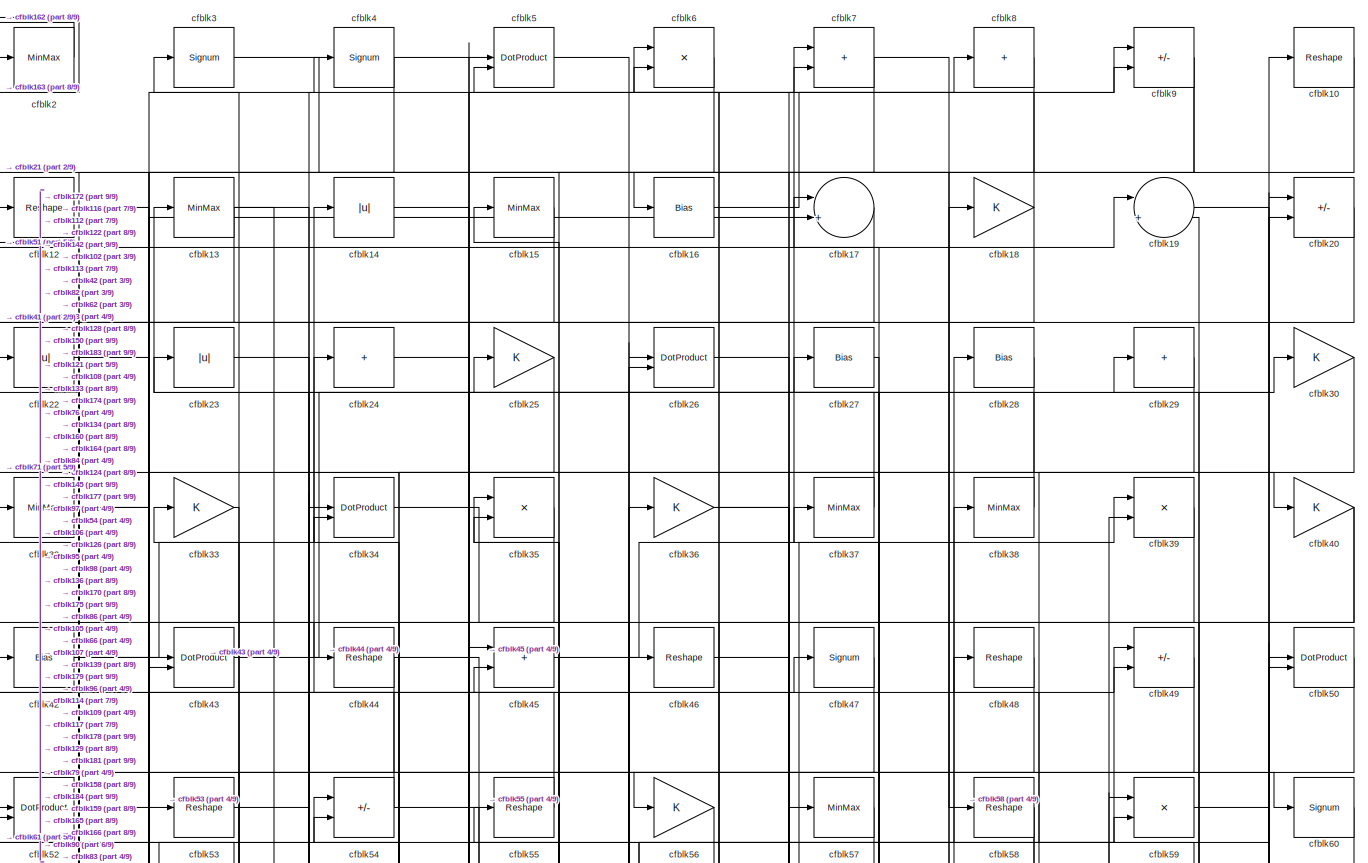
[diagram: root canvas - part 1/9, full width, top band]
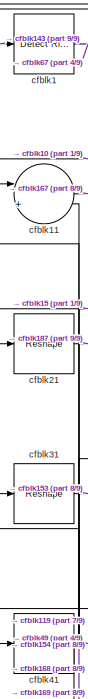
[diagram: root canvas - part 2/9, top left region]
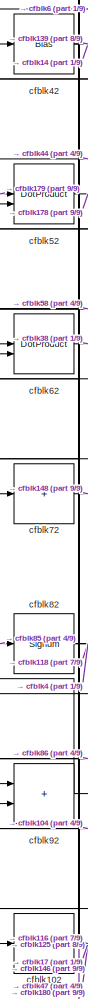
[diagram: root canvas - part 3/9, middle left region]
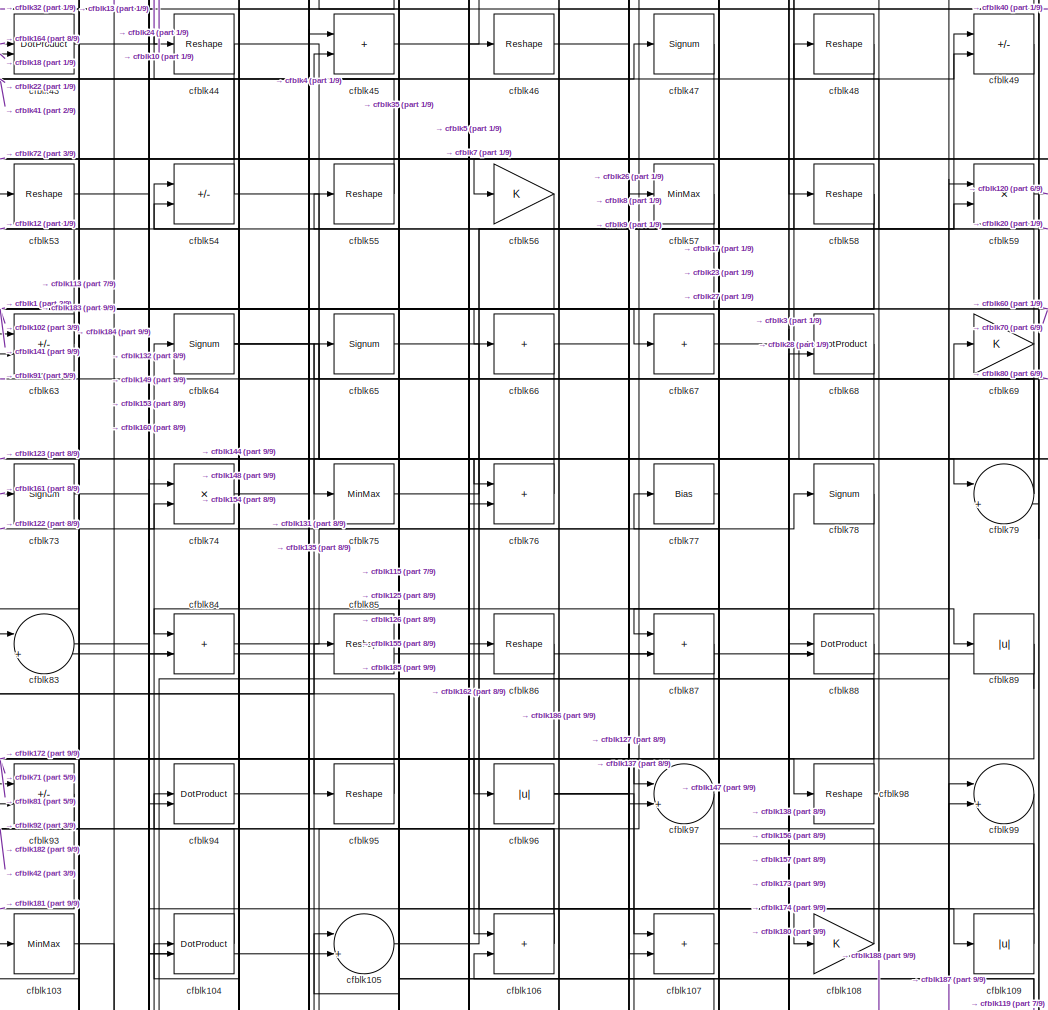
[diagram: root canvas - part 4/9, central region]
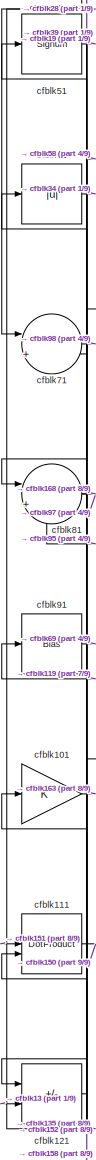
[diagram: root canvas - part 5/9, middle left region]
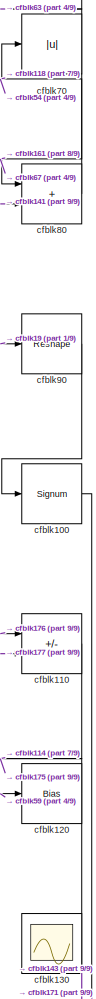
[diagram: root canvas - part 6/9, middle right region]
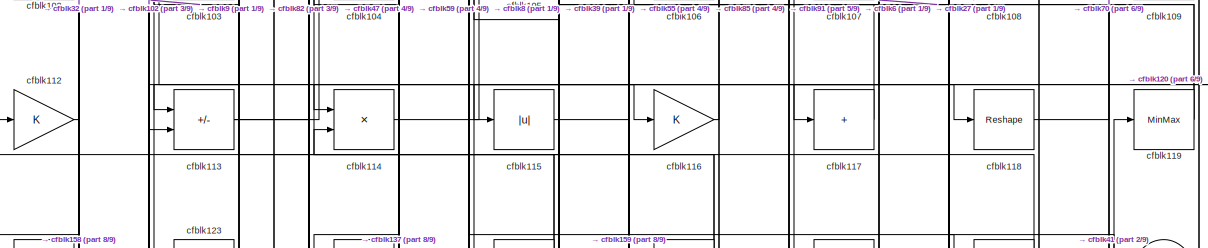
[diagram: root canvas - part 7/9, full width, middle band]
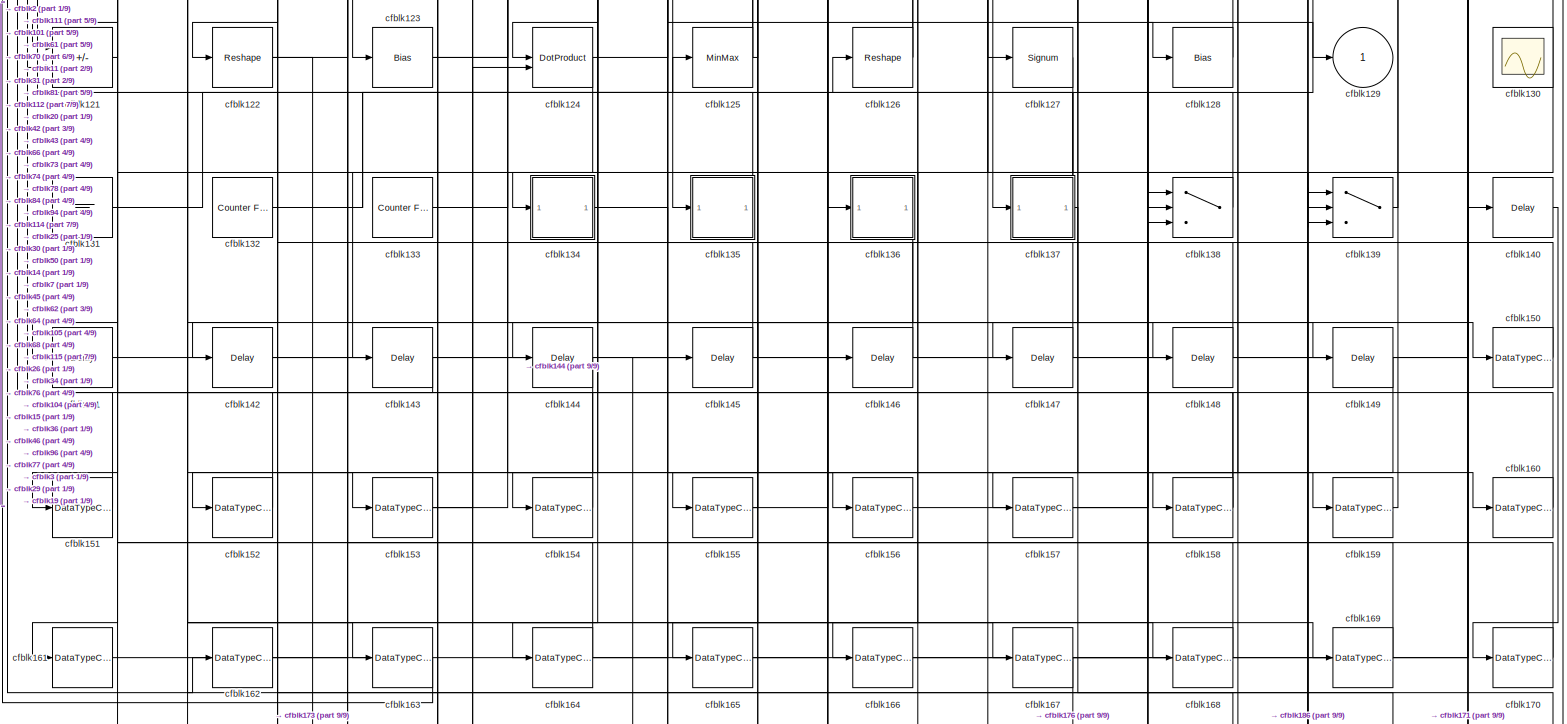
[diagram: root canvas - part 8/9, full width, bottom band]
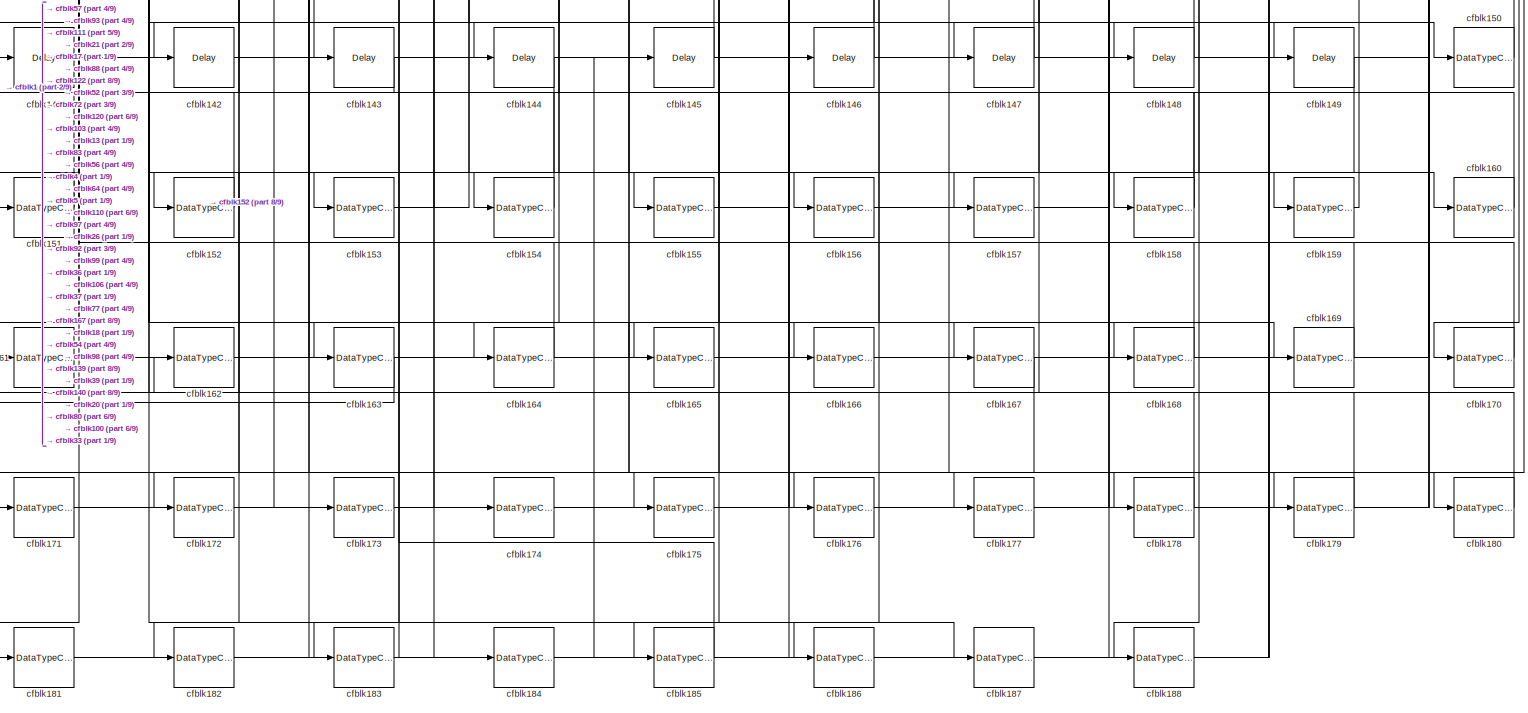
[diagram: root canvas - part 9/9, full width, bottom band]
MODEL slx_d58845a82980
KIND model
CONFIG AbsTol = auto
CONFIG EnableMultiTasking = off
CONFIG FixedStep = auto
CONFIG MaxStep = auto
CONFIG MinStep = auto
CONFIG RelTol = 1e-3
CONFIG SampleTimeConstraint = Unconstrained
CONFIG SolverName = VariableStepAuto
CONFIG StartTime = 0.0
CONFIG StopTime = 10.0
BLOCK [Reference] cfblk1  REF=hdlsllib/Logic and Bit
Operations/Detect Rise
Nonnegative
  SourceBlock = hdlsllib/Logic and Bit\nOperations/Detect Rise\nNonnegative
  SourceType = Detect Rise Nonnegative
BLOCK [Reshape] cfblk10
BLOCK [Signum] cfblk100
BLOCK [Gain] cfblk101
BLOCK [Sum] cfblk102
  IconShape = rectangular
  Inputs = +
BLOCK [MinMax] cfblk103
BLOCK [DotProduct] cfblk104
  OutDataTypeStr = Inherit: Inherit via internal rule
BLOCK [Sum] cfblk105
  Inputs = |++
BLOCK [Sum] cfblk106
  IconShape = rectangular
BLOCK [Sum] cfblk107
  IconShape = rectangular
BLOCK [Gain] cfblk108
BLOCK [Abs] cfblk109
  SaturateOnIntegerOverflow = off
BLOCK [Sum] cfblk11
  Inputs = |++
BLOCK [Sum] cfblk110
  IconShape = rectangular
  Inputs = +-
BLOCK [DotProduct] cfblk111
  OutDataTypeStr = Inherit: Inherit via internal rule
BLOCK [Gain] cfblk112
BLOCK [Sum] cfblk113
  IconShape = rectangular
  Inputs = +-
BLOCK [Product] cfblk114
  Inputs = */
  RndMeth = Zero
  SaturateOnIntegerOverflow = on
BLOCK [Abs] cfblk115
  SaturateOnIntegerOverflow = off
BLOCK [Gain] cfblk116
BLOCK [Sum] cfblk117
  IconShape = rectangular
  Inputs = +
BLOCK [Reshape] cfblk118
BLOCK [MinMax] cfblk119
BLOCK [Reshape] cfblk12
BLOCK [Bias] cfblk120
  Bias = 0.0
  SaturateOnIntegerOverflow = off
BLOCK [Sum] cfblk121
  IconShape = rectangular
  Inputs = +-
BLOCK [Reshape] cfblk122
BLOCK [Bias] cfblk123
  Bias = 0.0
  SaturateOnIntegerOverflow = off
BLOCK [DotProduct] cfblk124
  OutDataTypeStr = Inherit: Inherit via internal rule
BLOCK [MinMax] cfblk125
BLOCK [Reshape] cfblk126
BLOCK [Signum] cfblk127
BLOCK [Bias] cfblk128
  Bias = 0.0
  SaturateOnIntegerOverflow = off
BLOCK [Outport] cfblk129
  VectorParamsAs1DForOutWhenUnconnected = off
BLOCK [MinMax] cfblk13
BLOCK [Scope] cfblk130
  Floating = on
  NumInputPorts = 1
  ScopeSpecificationString = Simulink.scopes.TimeScopeBlockCfg('CurrentConfiguration', extmgr.ConfigurationSet(extmgr.Configuration('Core','General UI',true,'FigureColor',[0.156862745098039 0.156862745098039 0.156862745098039]),extmgr.Configuration('Core','Source UI',true),extmgr.Configuration('Sources','WiredSimulink',true,'DataLoggingVariableName','ScopeData1','DataLoggingSaveFormat','StructureWithTime','DataLoggingLimitDat...<+2713ch>
BLOCK [Ground] cfblk131
BLOCK [Reference] cfblk132  REF=hdlsllib/Sources/Counter
Free-Running
  SourceBlock = hdlsllib/Sources/Counter\nFree-Running
  SourceType = Counter Free-Running
BLOCK [Reference] cfblk133  REF=hdlsllib/Sources/Counter
Free-Running
  SourceBlock = hdlsllib/Sources/Counter\nFree-Running
  SourceType = Counter Free-Running
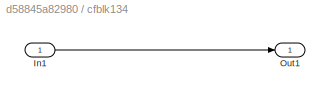
BLOCK [SubSystem] cfblk134
  LibrarySourceBlock = hdlsllib/Ports &\nSubsystems/Subsystem
BLOCK [Inport] cfblk134/In1
BLOCK [Outport] cfblk134/Out1
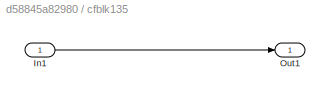
BLOCK [SubSystem] cfblk135
  LibrarySourceBlock = hdlsllib/Ports &\nSubsystems/Subsystem
BLOCK [Inport] cfblk135/In1
BLOCK [Outport] cfblk135/Out1
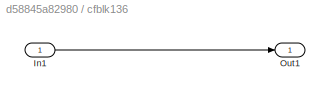
BLOCK [SubSystem] cfblk136
  LibrarySourceBlock = hdlsllib/Ports &\nSubsystems/Subsystem
BLOCK [Inport] cfblk136/In1
BLOCK [Outport] cfblk136/Out1
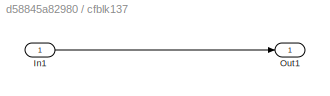
BLOCK [SubSystem] cfblk137
  LibrarySourceBlock = hdlsllib/Ports &\nSubsystems/Subsystem
BLOCK [Inport] cfblk137/In1
BLOCK [Outport] cfblk137/Out1
BLOCK [Switch] cfblk138
  InputSameDT = off
  SaturateOnIntegerOverflow = off
BLOCK [Switch] cfblk139
  InputSameDT = off
  SaturateOnIntegerOverflow = off
BLOCK [Abs] cfblk14
  SaturateOnIntegerOverflow = off
BLOCK [Delay] cfblk140
  InputPortMap = u0
  SampleTime = 1
BLOCK [Delay] cfblk141
  InputPortMap = u0
  SampleTime = 1
BLOCK [Delay] cfblk142
  InputPortMap = u0
  SampleTime = 1
BLOCK [Delay] cfblk143
  InputPortMap = u0
  SampleTime = 1
BLOCK [Delay] cfblk144
  InputPortMap = u0
  SampleTime = 1
BLOCK [Delay] cfblk145
  InputPortMap = u0
  SampleTime = 1
BLOCK [Delay] cfblk146
  InputPortMap = u0
  SampleTime = 1
BLOCK [Delay] cfblk147
  InputPortMap = u0
  SampleTime = 1
BLOCK [Delay] cfblk148
  InputPortMap = u0
  SampleTime = 1
BLOCK [Delay] cfblk149
  InputPortMap = u0
  SampleTime = 1
BLOCK [MinMax] cfblk15
BLOCK [DataTypeConversion] cfblk150
  OutDataTypeStr = uint8
  RndMeth = Floor
  SaturateOnIntegerOverflow = off
BLOCK [DataTypeConversion] cfblk151
  OutDataTypeStr = uint8
  RndMeth = Floor
  SaturateOnIntegerOverflow = off
BLOCK [DataTypeConversion] cfblk152
  OutDataTypeStr = uint8
  RndMeth = Floor
  SaturateOnIntegerOverflow = off
BLOCK [DataTypeConversion] cfblk153
  RndMeth = Floor
  SaturateOnIntegerOverflow = off
BLOCK [DataTypeConversion] cfblk154
  OutDataTypeStr = uint8
  RndMeth = Floor
  SaturateOnIntegerOverflow = off
BLOCK [DataTypeConversion] cfblk155
  RndMeth = Floor
  SaturateOnIntegerOverflow = off
BLOCK [DataTypeConversion] cfblk156
  OutDataTypeStr = uint8
  RndMeth = Floor
  SaturateOnIntegerOverflow = off
BLOCK [DataTypeConversion] cfblk157
  OutDataTypeStr = uint8
  RndMeth = Floor
  SaturateOnIntegerOverflow = off
BLOCK [DataTypeConversion] cfblk158
  RndMeth = Floor
  SaturateOnIntegerOverflow = off
BLOCK [DataTypeConversion] cfblk159
  OutDataTypeStr = uint8
  RndMeth = Floor
  SaturateOnIntegerOverflow = off
BLOCK [Bias] cfblk16
  Bias = 0.0
  SaturateOnIntegerOverflow = off
BLOCK [DataTypeConversion] cfblk160
  OutDataTypeStr = uint8
  RndMeth = Floor
  SaturateOnIntegerOverflow = off
BLOCK [DataTypeConversion] cfblk161
  OutDataTypeStr = uint8
  RndMeth = Floor
  SaturateOnIntegerOverflow = off
BLOCK [DataTypeConversion] cfblk162
  OutDataTypeStr = uint8
  RndMeth = Floor
  SaturateOnIntegerOverflow = off
BLOCK [DataTypeConversion] cfblk163
  OutDataTypeStr = uint8
  RndMeth = Floor
  SaturateOnIntegerOverflow = off
BLOCK [DataTypeConversion] cfblk164
  RndMeth = Floor
  SaturateOnIntegerOverflow = off
BLOCK [DataTypeConversion] cfblk165
  OutDataTypeStr = uint8
  RndMeth = Floor
  SaturateOnIntegerOverflow = off
BLOCK [DataTypeConversion] cfblk166
  OutDataTypeStr = uint8
  RndMeth = Floor
  SaturateOnIntegerOverflow = off
BLOCK [DataTypeConversion] cfblk167
  RndMeth = Floor
  SaturateOnIntegerOverflow = off
BLOCK [DataTypeConversion] cfblk168
  OutDataTypeStr = uint8
  RndMeth = Floor
  SaturateOnIntegerOverflow = off
BLOCK [DataTypeConversion] cfblk169
  OutDataTypeStr = uint8
  RndMeth = Floor
  SaturateOnIntegerOverflow = off
BLOCK [Sum] cfblk17
  Inputs = |++
BLOCK [DataTypeConversion] cfblk170
  OutDataTypeStr = uint8
  RndMeth = Floor
  SaturateOnIntegerOverflow = off
BLOCK [DataTypeConversion] cfblk171
  OutDataTypeStr = uint8
  RndMeth = Floor
  SaturateOnIntegerOverflow = off
BLOCK [DataTypeConversion] cfblk172
  OutDataTypeStr = uint8
  RndMeth = Floor
  SaturateOnIntegerOverflow = off
BLOCK [DataTypeConversion] cfblk173
  OutDataTypeStr = uint8
  RndMeth = Floor
  SaturateOnIntegerOverflow = off
BLOCK [DataTypeConversion] cfblk174
  OutDataTypeStr = uint8
  RndMeth = Floor
  SaturateOnIntegerOverflow = off
BLOCK [DataTypeConversion] cfblk175
  OutDataTypeStr = uint8
  RndMeth = Floor
  SaturateOnIntegerOverflow = off
BLOCK [DataTypeConversion] cfblk176
  OutDataTypeStr = uint8
  RndMeth = Floor
  SaturateOnIntegerOverflow = off
BLOCK [DataTypeConversion] cfblk177
  OutDataTypeStr = uint8
  RndMeth = Floor
  SaturateOnIntegerOverflow = off
BLOCK [DataTypeConversion] cfblk178
  OutDataTypeStr = uint8
  RndMeth = Floor
  SaturateOnIntegerOverflow = off
BLOCK [DataTypeConversion] cfblk179
  OutDataTypeStr = uint8
  RndMeth = Floor
  SaturateOnIntegerOverflow = off
BLOCK [Gain] cfblk18
BLOCK [DataTypeConversion] cfblk180
  OutDataTypeStr = uint8
  RndMeth = Floor
  SaturateOnIntegerOverflow = off
BLOCK [DataTypeConversion] cfblk181
  OutDataTypeStr = uint8
  RndMeth = Floor
  SaturateOnIntegerOverflow = off
BLOCK [DataTypeConversion] cfblk182
  OutDataTypeStr = uint8
  RndMeth = Floor
  SaturateOnIntegerOverflow = off
BLOCK [DataTypeConversion] cfblk183
  OutDataTypeStr = uint8
  RndMeth = Floor
  SaturateOnIntegerOverflow = off
BLOCK [DataTypeConversion] cfblk184
  RndMeth = Floor
  SaturateOnIntegerOverflow = off
BLOCK [DataTypeConversion] cfblk185
  OutDataTypeStr = uint8
  RndMeth = Floor
  SaturateOnIntegerOverflow = off
BLOCK [DataTypeConversion] cfblk186
  OutDataTypeStr = uint8
  RndMeth = Floor
  SaturateOnIntegerOverflow = off
BLOCK [DataTypeConversion] cfblk187
  OutDataTypeStr = uint8
  RndMeth = Floor
  SaturateOnIntegerOverflow = off
BLOCK [DataTypeConversion] cfblk188
  OutDataTypeStr = uint8
  RndMeth = Floor
  SaturateOnIntegerOverflow = off
BLOCK [Sum] cfblk19
  Inputs = |++
BLOCK [MinMax] cfblk2
BLOCK [Sum] cfblk20
  IconShape = rectangular
  Inputs = +-
BLOCK [Reshape] cfblk21
BLOCK [Abs] cfblk22
  SaturateOnIntegerOverflow = off
BLOCK [Abs] cfblk23
  SaturateOnIntegerOverflow = off
BLOCK [Sum] cfblk24
  IconShape = rectangular
  Inputs = +
BLOCK [Gain] cfblk25
BLOCK [DotProduct] cfblk26
  OutDataTypeStr = Inherit: Inherit via internal rule
BLOCK [Bias] cfblk27
  Bias = 0.0
  SaturateOnIntegerOverflow = off
BLOCK [Bias] cfblk28
  Bias = 0.0
  SaturateOnIntegerOverflow = off
BLOCK [Sum] cfblk29
  IconShape = rectangular
  Inputs = +
BLOCK [Signum] cfblk3
BLOCK [Gain] cfblk30
BLOCK [Reshape] cfblk31
BLOCK [MinMax] cfblk32
BLOCK [Gain] cfblk33
BLOCK [DotProduct] cfblk34
  OutDataTypeStr = Inherit: Inherit via internal rule
BLOCK [Product] cfblk35
  Inputs = */
  RndMeth = Zero
  SaturateOnIntegerOverflow = on
BLOCK [Gain] cfblk36
BLOCK [MinMax] cfblk37
BLOCK [MinMax] cfblk38
BLOCK [Product] cfblk39
  Inputs = */
  RndMeth = Zero
  SaturateOnIntegerOverflow = on
BLOCK [Signum] cfblk4
BLOCK [Gain] cfblk40
BLOCK [Reshape] cfblk41
BLOCK [Bias] cfblk42
  Bias = 0.0
  SaturateOnIntegerOverflow = off
BLOCK [DotProduct] cfblk43
  OutDataTypeStr = Inherit: Inherit via internal rule
BLOCK [Reshape] cfblk44
BLOCK [Sum] cfblk45
  IconShape = rectangular
BLOCK [Reshape] cfblk46
BLOCK [Signum] cfblk47
BLOCK [Reshape] cfblk48
BLOCK [Sum] cfblk49
  IconShape = rectangular
  Inputs = +-
BLOCK [DotProduct] cfblk5
  OutDataTypeStr = Inherit: Inherit via internal rule
BLOCK [DotProduct] cfblk50
  OutDataTypeStr = Inherit: Inherit via internal rule
BLOCK [Signum] cfblk51
BLOCK [DotProduct] cfblk52
  OutDataTypeStr = Inherit: Inherit via internal rule
BLOCK [Reshape] cfblk53
BLOCK [Sum] cfblk54
  IconShape = rectangular
  Inputs = +-
BLOCK [Reshape] cfblk55
BLOCK [Gain] cfblk56
BLOCK [MinMax] cfblk57
BLOCK [Reshape] cfblk58
BLOCK [Product] cfblk59
  Inputs = */
  RndMeth = Zero
  SaturateOnIntegerOverflow = on
BLOCK [Product] cfblk6
  Inputs = */
  RndMeth = Zero
  SaturateOnIntegerOverflow = on
BLOCK [Signum] cfblk60
BLOCK [Abs] cfblk61
  SaturateOnIntegerOverflow = off
BLOCK [DotProduct] cfblk62
  OutDataTypeStr = Inherit: Inherit via internal rule
BLOCK [Sum] cfblk63
  IconShape = rectangular
  Inputs = +-
BLOCK [Signum] cfblk64
BLOCK [Signum] cfblk65
BLOCK [Sum] cfblk66
  IconShape = rectangular
  Inputs = +
BLOCK [Sum] cfblk67
  IconShape = rectangular
  Inputs = +
BLOCK [DotProduct] cfblk68
  OutDataTypeStr = Inherit: Inherit via internal rule
BLOCK [Gain] cfblk69
BLOCK [Sum] cfblk7
  IconShape = rectangular
BLOCK [Abs] cfblk70
  SaturateOnIntegerOverflow = off
BLOCK [Sum] cfblk71
  Inputs = |++
BLOCK [Sum] cfblk72
  IconShape = rectangular
  Inputs = +
BLOCK [Signum] cfblk73
BLOCK [Product] cfblk74
  Inputs = */
  RndMeth = Zero
  SaturateOnIntegerOverflow = on
BLOCK [MinMax] cfblk75
BLOCK [Sum] cfblk76
  IconShape = rectangular
BLOCK [Bias] cfblk77
  Bias = 0.0
  SaturateOnIntegerOverflow = off
BLOCK [Signum] cfblk78
BLOCK [Sum] cfblk79
  Inputs = |++
BLOCK [Sum] cfblk8
  IconShape = rectangular
  Inputs = +
BLOCK [Sum] cfblk80
  IconShape = rectangular
BLOCK [Sum] cfblk81
  Inputs = |++
BLOCK [Signum] cfblk82
BLOCK [Sum] cfblk83
  Inputs = |++
BLOCK [Sum] cfblk84
  IconShape = rectangular
BLOCK [Reshape] cfblk85
BLOCK [Reshape] cfblk86
BLOCK [Sum] cfblk87
  IconShape = rectangular
BLOCK [DotProduct] cfblk88
  OutDataTypeStr = Inherit: Inherit via internal rule
BLOCK [Abs] cfblk89
  SaturateOnIntegerOverflow = off
BLOCK [Sum] cfblk9
  IconShape = rectangular
  Inputs = +-
BLOCK [Reshape] cfblk90
BLOCK [Bias] cfblk91
  Bias = 0.0
  SaturateOnIntegerOverflow = off
BLOCK [Sum] cfblk92
  IconShape = rectangular
BLOCK [Sum] cfblk93
  IconShape = rectangular
  Inputs = +-
BLOCK [DotProduct] cfblk94
  OutDataTypeStr = Inherit: Inherit via internal rule
BLOCK [Reshape] cfblk95
BLOCK [Abs] cfblk96
  SaturateOnIntegerOverflow = off
BLOCK [Sum] cfblk97
  Inputs = |++
BLOCK [Reshape] cfblk98
BLOCK [Sum] cfblk99
  Inputs = |++
LINE cfblk100:1 -> cfblk171:1
LINE cfblk101:1 -> cfblk163:1
NET cfblk102:1 -> cfblk116:1, cfblk17:2, cfblk47:1
LINE cfblk103:1 -> cfblk184:1
LINE cfblk104:1 -> cfblk42:1
LINE cfblk105:1 -> cfblk20:1
NET cfblk106:1 -> cfblk35:2, cfblk94:1
LINE cfblk107:1 -> cfblk27:1
LINE cfblk108:1 -> cfblk23:1
LINE cfblk109:1 -> cfblk17:1
LINE cfblk10:1 -> cfblk21:1
LINE cfblk110:1 -> cfblk175:1
LINE cfblk111:1 -> cfblk150:1
LINE cfblk112:1 -> cfblk32:1
NET cfblk113:1 -> cfblk59:1, cfblk8:1
LINE cfblk114:1 -> cfblk39:1
LINE cfblk115:1 -> cfblk159:1
LINE cfblk116:1 -> cfblk6:1
LINE cfblk117:1 -> cfblk6:2
LINE cfblk118:1 -> cfblk70:1
NET cfblk119:1 -> cfblk55:1, cfblk91:1
LINE cfblk11:1 -> cfblk167:1
NET cfblk120:1 -> cfblk114:1, cfblk143:1
LINE cfblk121:1 -> cfblk51:1
NET cfblk122:1 -> cfblk173:1, cfblk74:2
NET cfblk123:1 -> cfblk74:1, cfblk78:1
NET cfblk124:1 -> cfblk151:1, cfblk7:2
NET cfblk125:1 -> cfblk45:2, cfblk62:2, cfblk64:1
NET cfblk126:1 -> cfblk104:1, cfblk15:1
LINE cfblk127:1 -> cfblk166:1
LINE cfblk128:1 -> cfblk3:1
LINE cfblk12:1 -> cfblk60:1
LINE cfblk131:1 -> cfblk45:1
NET cfblk132:1 -> cfblk125:1, cfblk94:2
LINE cfblk133:1 -> cfblk30:1
LINE cfblk134/In1:1 -> cfblk134/Out1:1
LINE cfblk134:1 -> cfblk156:1
LINE cfblk135/In1:1 -> cfblk135/Out1:1
LINE cfblk135:1 -> cfblk101:1
LINE cfblk136/In1:1 -> cfblk136/Out1:1
LINE cfblk136:1 -> cfblk165:1
LINE cfblk137/In1:1 -> cfblk137/Out1:1
NET cfblk137:1 -> cfblk114:2, cfblk126:1, cfblk157:1
LINE cfblk138:1 -> cfblk77:1
LINE cfblk139:1 -> cfblk19:2
NET cfblk13:1 -> cfblk108:1, cfblk121:2, cfblk174:1
LINE cfblk140:1 -> cfblk170:1
LINE cfblk141:1 -> cfblk80:2
LINE cfblk142:1 -> cfblk20:2
LINE cfblk143:1 -> cfblk1:1
LINE cfblk144:1 -> cfblk152:1
LINE cfblk145:1 -> cfblk5:1
LINE cfblk146:1 -> cfblk92:2
LINE cfblk147:1 -> cfblk106:2
LINE cfblk148:1 -> cfblk54:2
LINE cfblk149:1 -> cfblk182:1
LINE cfblk14:1 -> cfblk128:1
LINE cfblk150:1 -> cfblk33:1
LINE cfblk151:1 -> cfblk111:1
LINE cfblk152:1 -> cfblk111:2
NET cfblk153:1 -> cfblk124:2, cfblk84:2
LINE cfblk154:1 -> cfblk31:1
NET cfblk155:1 -> cfblk105:1, cfblk76:2
LINE cfblk156:1 -> cfblk68:1
LINE cfblk157:1 -> cfblk68:2
NET cfblk158:1 -> cfblk112:1, cfblk61:1
LINE cfblk159:1 -> cfblk29:1
LINE cfblk15:1 -> cfblk41:1
LINE cfblk160:1 -> cfblk34:2
LINE cfblk161:1 -> cfblk73:1
LINE cfblk162:1 -> cfblk46:1
LINE cfblk163:1 -> cfblk2:1
NET cfblk164:1 -> cfblk169:1, cfblk43:1
LINE cfblk165:1 -> cfblk50:1
LINE cfblk166:1 -> cfblk50:2
NET cfblk167:1 -> cfblk138:3, cfblk176:1
LINE cfblk168:1 -> cfblk11:1
LINE cfblk169:1 -> cfblk11:2
LINE cfblk16:1 -> cfblk9:1
LINE cfblk170:1 -> cfblk26:1
LINE cfblk171:1 -> cfblk140:1
LINE cfblk172:1 -> cfblk26:2
LINE cfblk173:1 -> cfblk88:1
LINE cfblk174:1 -> cfblk88:2
LINE cfblk175:1 -> cfblk36:1
LINE cfblk176:1 -> cfblk110:1
LINE cfblk177:1 -> cfblk110:2
LINE cfblk178:1 -> cfblk37:1
LINE cfblk179:1 -> cfblk52:1
LINE cfblk17:1 -> cfblk142:1
LINE cfblk180:1 -> cfblk52:2
LINE cfblk181:1 -> cfblk18:1
LINE cfblk182:1 -> cfblk93:1
LINE cfblk183:1 -> cfblk93:2
NET cfblk184:1 -> cfblk145:1, cfblk146:1, cfblk39:2
LINE cfblk185:1 -> cfblk103:1
LINE cfblk186:1 -> cfblk139:1
LINE cfblk187:1 -> cfblk99:1
LINE cfblk188:1 -> cfblk99:2
NET cfblk18:1 -> cfblk43:2, cfblk5:2
LINE cfblk19:1 -> cfblk90:1
LINE cfblk1:1 -> cfblk67:1
LINE cfblk20:1 -> cfblk122:1
LINE cfblk21:1 -> cfblk187:1
LINE cfblk22:1 -> cfblk40:1
LINE cfblk23:1 -> cfblk76:1
LINE cfblk24:1 -> cfblk97:1
LINE cfblk25:1 -> cfblk134:1
LINE cfblk26:1 -> cfblk79:1
LINE cfblk27:1 -> cfblk117:1
LINE cfblk28:1 -> cfblk71:2
LINE cfblk29:1 -> cfblk158:1
LINE cfblk2:1 -> cfblk162:1
LINE cfblk30:1 -> cfblk124:1
LINE cfblk31:1 -> cfblk153:1
NET cfblk32:1 -> cfblk44:1, cfblk53:1
LINE cfblk33:1 -> cfblk183:1
LINE cfblk34:1 -> cfblk136:1
LINE cfblk35:1 -> cfblk84:1
NET cfblk36:1 -> cfblk139:3, cfblk179:1
LINE cfblk37:1 -> cfblk13:1
LINE cfblk38:1 -> cfblk25:1
LINE cfblk39:1 -> cfblk121:1
LINE cfblk3:1 -> cfblk58:1
NET cfblk40:1 -> cfblk66:1, cfblk79:2
NET cfblk41:1 -> cfblk119:1, cfblk49:2
NET cfblk42:1 -> cfblk139:2, cfblk14:1
LINE cfblk43:1 -> cfblk10:1
NET cfblk44:1 -> cfblk106:1, cfblk72:1
LINE cfblk45:1 -> cfblk7:1
LINE cfblk46:1 -> cfblk127:1
LINE cfblk47:1 -> cfblk113:1
LINE cfblk48:1 -> cfblk56:1
LINE cfblk49:1 -> cfblk71:1
NET cfblk4:1 -> cfblk177:1, cfblk63:2
LINE cfblk50:1 -> cfblk164:1
LINE cfblk51:1 -> cfblk19:1
LINE cfblk52:1 -> cfblk178:1
LINE cfblk53:1 -> cfblk105:2
NET cfblk54:1 -> cfblk22:1, cfblk87:2
LINE cfblk55:1 -> cfblk24:1
LINE cfblk56:1 -> cfblk144:1
LINE cfblk57:1 -> cfblk141:1
NET cfblk58:1 -> cfblk102:1, cfblk81:1
LINE cfblk59:1 -> cfblk120:1
LINE cfblk5:1 -> cfblk86:1
LINE cfblk60:1 -> cfblk83:1
LINE cfblk61:1 -> cfblk34:1
LINE cfblk62:1 -> cfblk38:1
LINE cfblk63:1 -> cfblk12:1
NET cfblk64:1 -> cfblk135:1, cfblk138:1, cfblk180:1
LINE cfblk65:1 -> cfblk109:1
NET cfblk66:1 -> cfblk123:1, cfblk89:1
LINE cfblk67:1 -> cfblk80:1
LINE cfblk68:1 -> cfblk155:1
NET cfblk69:1 -> cfblk48:1, cfblk87:1
LINE cfblk6:1 -> cfblk62:1
NET cfblk70:1 -> cfblk161:1, cfblk63:1
LINE cfblk71:1 -> cfblk98:1
LINE cfblk72:1 -> cfblk148:1
LINE cfblk73:1 -> cfblk160:1
LINE cfblk74:1 -> cfblk59:2
LINE cfblk75:1 -> cfblk49:1
LINE cfblk76:1 -> cfblk75:1
LINE cfblk77:1 -> cfblk147:1
LINE cfblk78:1 -> cfblk154:1
NET cfblk79:1 -> cfblk28:1, cfblk65:1
NET cfblk7:1 -> cfblk129:1, cfblk16:1
LINE cfblk80:1 -> cfblk54:1
NET cfblk81:1 -> cfblk168:1, cfblk97:2
NET cfblk82:1 -> cfblk118:1, cfblk4:1
LINE cfblk83:1 -> cfblk149:1
LINE cfblk84:1 -> cfblk57:1
LINE cfblk85:1 -> cfblk115:1
LINE cfblk86:1 -> cfblk92:1
LINE cfblk87:1 -> cfblk107:1
LINE cfblk88:1 -> cfblk172:1
NET cfblk89:1 -> cfblk104:2, cfblk83:2
LINE cfblk8:1 -> cfblk107:2
LINE cfblk90:1 -> cfblk100:1
LINE cfblk91:1 -> cfblk69:1
NET cfblk92:1 -> cfblk82:1, cfblk85:1
LINE cfblk93:1 -> cfblk181:1
LINE cfblk94:1 -> cfblk96:1
LINE cfblk95:1 -> cfblk81:2
NET cfblk96:1 -> cfblk137:1, cfblk138:2, cfblk9:2
LINE cfblk97:1 -> cfblk185:1
NET cfblk98:1 -> cfblk188:1, cfblk35:1
LINE cfblk99:1 -> cfblk186:1
NET cfblk9:1 -> cfblk113:2, cfblk95:1
note: NET lines group one-source signal fan-out (src -> all destinations, sorted); 1:1 wires keep LINE
